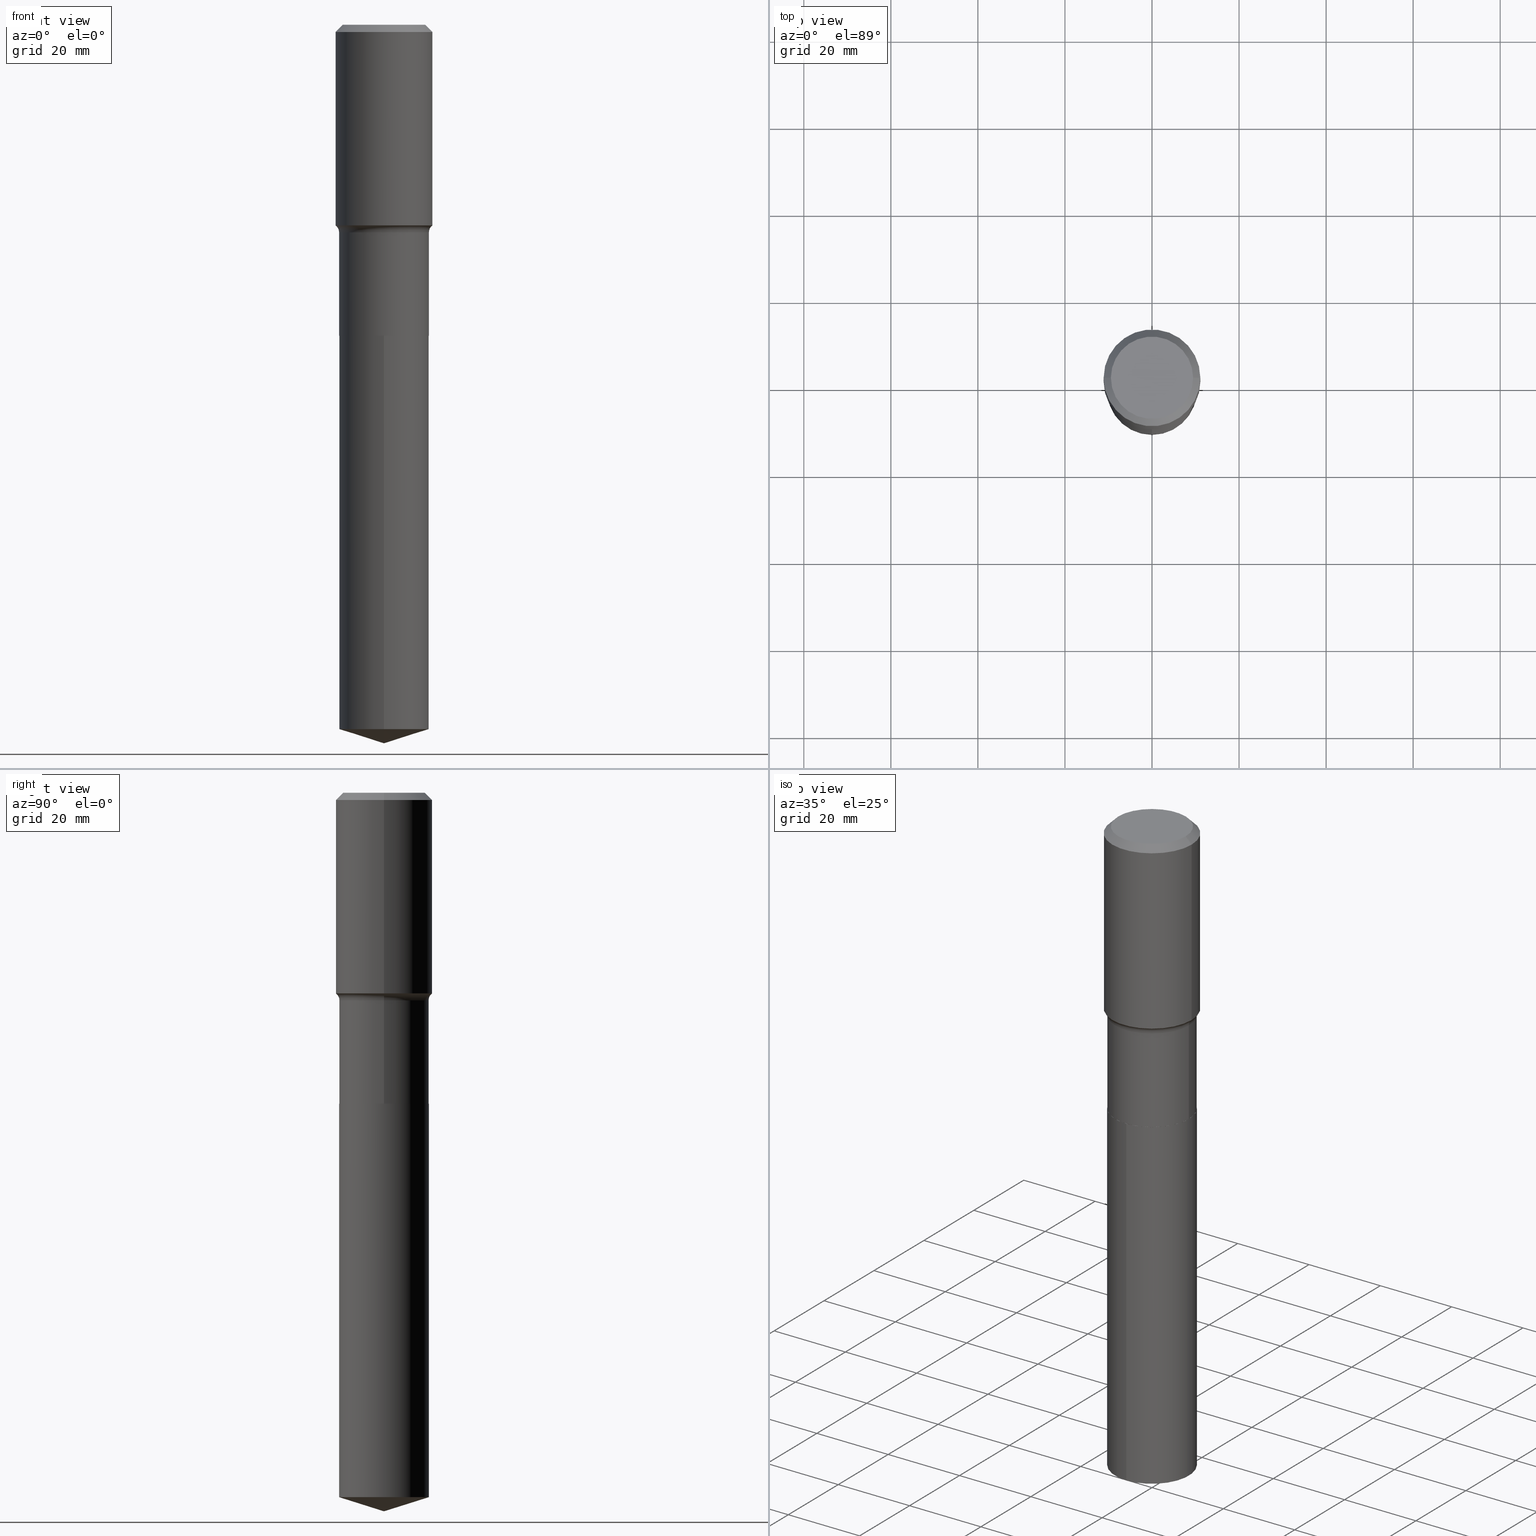
[diagram: canonical four-view strip — front | top / right | iso, engineering-drawing reading convention]
A machine part, canonical four-view strip (front | top / right | iso — engineering-drawing reading convention). The complete STEP part file that produces these views, byte-faithful:
ISO-10303-21;
HEADER;
FILE_DESCRIPTION (( 'STEP AP203' ),
    '1' );
FILE_NAME ('52358.STEP',
    '2024-04-19T13:55:57',
    ( '' ),
    ( '' ),
    'SwSTEP 2.0',
    'SolidWorks 2023',
    '' );
FILE_SCHEMA (( 'CONFIG_CONTROL_DESIGN' ));
ENDSEC;

DATA;
#1 = COORDINATED_UNIVERSAL_TIME_OFFSET ( 5, 0, .BEHIND. ) ;
#2 = DIRECTION ( 'NONE',  ( -1.000000000000000000, 6.982962677686266711E-15, 0.000000000000000000 ) ) ;
#3 = EDGE_CURVE ( 'NONE', #190, #418, #337, .T. ) ;
#4 = DIRECTION ( 'NONE',  ( 7.105427357601001859E-15, 1.000000000000000000, -3.491481338843145583E-15 ) ) ;
#5 = AXIS2_PLACEMENT_3D ( 'NONE', #387, #396, #316 ) ;
#6 = CARTESIAN_POINT ( 'NONE',  ( 0.4375000000000001665, -9.394398017093069781E-15, -1.815662531281288850 ) ) ;
#7 = DIRECTION ( 'NONE',  ( -2.445468806185136597E-29, 3.491481338843145583E-15, 1.000000000000000000 ) ) ;
#8 = ORIENTED_EDGE ( 'NONE', *, *, #257, .T. ) ;
#9 = DATE_TIME_ROLE ( 'classification_date' ) ;
#10 = LINE ( 'NONE', #315, #299 ) ;
#11 = VERTEX_POINT ( 'NONE', #489 ) ;
#12 = AXIS2_PLACEMENT_3D ( 'NONE', #255, #250, #328 ) ;
#13 = CARTESIAN_POINT ( 'NONE',  ( -0.4375000000000000000, 2.825917708626158890E-15, -0.06562500000000040523 ) ) ;
#14 = VERTEX_POINT ( 'NONE', #110 ) ;
#15 = DIRECTION ( 'NONE',  ( 6.982962677686265922E-15, 1.000000000000000000, -3.491608917464549921E-15 ) ) ;
#16 = EDGE_CURVE ( 'NONE', #418, #317, #36, .T. ) ;
#17 = CARTESIAN_POINT ( 'NONE',  ( -2.386509575646494077E-46, 3.407303183449149865E-32, 9.758904180705468520E-18 ) ) ;
#18 = ADVANCED_FACE ( 'NONE', ( #412 ), #106, .T. ) ;
#19 = AXIS2_PLACEMENT_3D ( 'NONE', #277, #126, #268 ) ;
#20 = FACE_OUTER_BOUND ( 'NONE', #225, .T. ) ;
#21 = CC_DESIGN_PERSON_AND_ORGANIZATION_ASSIGNMENT ( #231, #311, ( #141 ) ) ;
#22 = DIRECTION ( 'NONE',  ( 2.445379718509962477E-29, -3.491608917464549921E-15, -1.000000000000000000 ) ) ;
#23 = VERTEX_POINT ( 'NONE', #227 ) ;
#24 = CARTESIAN_POINT ( 'NONE',  ( 4.592834964896304470E-29, -6.557351102481311240E-15, -1.878099999999999881 ) ) ;
#25 = ORIENTED_EDGE ( 'NONE', *, *, #64, .T. ) ;
#26 = PRODUCT ( '52358', '52358', '', ( #483 ) ) ;
#27 = APPROVAL ( #421, 'UNSPECIFIED' ) ;
#28 = CARTESIAN_POINT ( 'NONE',  ( 6.876658282992603877E-29, -9.818045524826925768E-15, -2.811999999999999833 ) ) ;
#29 = AXIS2_PLACEMENT_3D ( 'NONE', #50, #165, #134 ) ;
#30 = CC_DESIGN_SECURITY_CLASSIFICATION ( #415, ( #141 ) ) ;
#31 = VERTEX_POINT ( 'NONE', #35 ) ;
#32 = EDGE_LOOP ( 'NONE', ( #244, #209, #258, #51 ) ) ;
#33 = ADVANCED_FACE ( 'NONE', ( #158 ), #487, .T. ) ;
#34 = DIRECTION ( 'NONE',  ( 0.7071067811864026886, -2.468850131080739687E-15, 0.7071067811866923458 ) ) ;
#35 = CARTESIAN_POINT ( 'NONE',  ( 2.886579864025563200E-15, 0.4062499999999901745, -2.812500000000001776 ) ) ;
#36 = CIRCLE ( 'NONE', #152, 0.4375000000000000000 ) ;
#37 = ORIENTED_EDGE ( 'NONE', *, *, #248, .F. ) ;
#38 = CIRCLE ( 'NONE', #469, 0.4062500000000000000 ) ;
#39 = CC_DESIGN_APPROVAL ( #27, ( #313 ) ) ;
#40 = MANIFOLD_SOLID_BREP ( 'Body-Move/Copy2[1]', #192 ) ;
#41 = EDGE_LOOP ( 'NONE', ( #37, #135 ) ) ;
#42 = ADVANCED_FACE ( 'NONE', ( #306 ), #449, .T. ) ;
#43 = DATE_TIME_ROLE ( 'creation_date' ) ;
#44 = EDGE_CURVE ( 'NONE', #492, #31, #400, .T. ) ;
#45 = DIRECTION ( 'NONE',  ( -2.445468806185136877E-29, 3.491481338843145188E-15, 1.000000000000000000 ) ) ;
#46 = SHAPE_DEFINITION_REPRESENTATION ( #448, #103 ) ;
#47 = CYLINDRICAL_SURFACE ( 'NONE', #19, 0.4062500000000000000 ) ;
#48 = AXIS2_PLACEMENT_3D ( 'NONE', #93, #308, #394 ) ;
#49 = COORDINATED_UNIVERSAL_TIME_OFFSET ( 5, 0, .BEHIND. ) ;
#50 = CARTESIAN_POINT ( 'NONE',  ( 1.604838904059005561E-30, -2.291284628615828451E-16, -0.06562500000000040523 ) ) ;
#51 = ORIENTED_EDGE ( 'NONE', *, *, #262, .F. ) ;
#52 = DIRECTION ( 'NONE',  ( 1.000000000000000000, -6.982962677686265133E-15, 0.000000000000000000 ) ) ;
#53 = ORIENTED_EDGE ( 'NONE', *, *, #64, .F. ) ;
#54 = DIRECTION ( 'NONE',  ( -6.982962677686266711E-15, -1.000000000000000000, 4.034729344488758288E-15 ) ) ;
#55 = ORIENTED_EDGE ( 'NONE', *, *, #380, .T. ) ;
#56 = VECTOR ( 'NONE', #45, 39.37007874015748143 ) ;
#57 = DIRECTION ( 'NONE',  ( -2.445379718509963318E-29, 3.491608917464549527E-15, 1.000000000000000000 ) ) ;
#58 = DIRECTION ( 'NONE',  ( 1.000000000000000000, -6.982962677686267499E-15, 0.000000000000000000 ) ) ;
#59 = MANIFOLD_SOLID_BREP ( 'Body-Move/Copy2[2]', #436 ) ;
#60 = PLANE ( 'NONE',  #73 ) ;
#61 = CIRCLE ( 'NONE', #347, 0.4062499999999998890 ) ;
#62 = DIRECTION ( 'NONE',  ( 1.000000000000000000, -6.982962677686265922E-15, 4.876176775795935793E-29 ) ) ;
#63 = VERTEX_POINT ( 'NONE', #267 ) ;
#64 = EDGE_CURVE ( 'NONE', #204, #63, #117, .T. ) ;
#65 = DIRECTION ( 'NONE',  ( -2.438088387897960049E-29, 3.491481338843145188E-15, 1.000000000000000000 ) ) ;
#66 = ORIENTED_EDGE ( 'NONE', *, *, #344, .T. ) ;
#67 = CARTESIAN_POINT ( 'NONE',  ( 0.4375000000000000000, -3.284174634349324087E-15, -0.06562500000000040523 ) ) ;
#68 = DIRECTION ( 'NONE',  ( -2.445468806185136597E-29, 3.491481338843145583E-15, 1.000000000000000000 ) ) ;
#69 = AXIS2_PLACEMENT_3D ( 'NONE', #238, #4, #240 ) ;
#70 = AXIS2_PLACEMENT_3D ( 'NONE', #465, #425, #200 ) ;
#71 = DIRECTION ( 'NONE',  ( 0.000000000000000000, 0.000000000000000000, 1.000000000000000000 ) ) ;
#72 = ADVANCED_FACE ( 'NONE', ( #196 ), #223, .F. ) ;
#73 = AXIS2_PLACEMENT_3D ( 'NONE', #330, #65, #62 ) ;
#74 = VECTOR ( 'NONE', #157, 39.37007874015748143 ) ;
#75 = EDGE_LOOP ( 'NONE', ( #358, #25, #252 ) ) ;
#76 = EDGE_CURVE ( 'NONE', #353, #296, #285, .T. ) ;
#77 = DIRECTION ( 'NONE',  ( 1.000000000000000000, 0.000000000000000000, 0.000000000000000000 ) ) ;
#78 = ORIENTED_EDGE ( 'NONE', *, *, #478, .F. ) ;
#79 = DIRECTION ( 'NONE',  ( 6.776566513254253404E-15, 0.9537169507482281539, 0.3007057995042689003 ) ) ;
#80 = DIMENSIONAL_EXPONENTS ( 1.000000000000000000, 0.000000000000000000, 0.000000000000000000, 0.000000000000000000, 0.000000000000000000, 0.000000000000000000, 0.000000000000000000 ) ;
#81 = APPROVAL_DATE_TIME ( #162, #361 ) ;
#82 = ORIENTED_EDGE ( 'NONE', *, *, #450, .F. ) ;
#83 = CIRCLE ( 'NONE', #371, 0.4062500000000000000 ) ;
#84 = EDGE_CURVE ( 'NONE', #317, #418, #113, .T. ) ;
#85 = FACE_OUTER_BOUND ( 'NONE', #265, .T. ) ;
#86 = CARTESIAN_POINT ( 'NONE',  ( 6.877881017395696678E-29, -9.819791265496348060E-15, -2.812500000000000000 ) ) ;
#87 = ADVANCED_FACE ( 'NONE', ( #85 ), #391, .T. ) ;
#88 = DIRECTION ( 'NONE',  ( -6.982962677686266711E-15, -1.000000000000000000, 3.500519750498725731E-15 ) ) ;
#89 = AXIS2_PLACEMENT_3D ( 'NONE', #346, #471, #88 ) ;
#90 = CC_DESIGN_APPROVAL ( #416, ( #415 ) ) ;
#91 = ORIENTED_EDGE ( 'NONE', *, *, #300, .T. ) ;
#92 = CALENDAR_DATE ( 2024, 19, 4 ) ;
#93 = CARTESIAN_POINT ( 'NONE',  ( 6.877881017395696678E-29, -9.819791265496348060E-15, -2.812500000000000000 ) ) ;
#94 = ORIENTED_EDGE ( 'NONE', *, *, #450, .T. ) ;
#95 = FACE_OUTER_BOUND ( 'NONE', #374, .T. ) ;
#96 = APPLICATION_CONTEXT ( 'configuration controlled 3d designs of mechanical parts and assemblies' ) ;
#97 = EDGE_LOOP ( 'NONE', ( #378, #143, #443, #78 ) ) ;
#98 = CARTESIAN_POINT ( 'NONE',  ( 6.876658282992603877E-29, -9.818045524826925768E-15, -2.811999999999999833 ) ) ;
#99 = EDGE_CURVE ( 'NONE', #190, #398, #310, .T. ) ;
#100 = AXIS2_PLACEMENT_3D ( 'NONE', #249, #405, #323 ) ;
#101 = ADVANCED_FACE ( 'NONE', ( #128 ), #467, .T. ) ;
#102 = CARTESIAN_POINT ( 'NONE',  ( -4.773019151292988154E-46, 6.814606366898299729E-32, 1.951780836141093704E-17 ) ) ;
#103 = ADVANCED_BREP_SHAPE_REPRESENTATION ( '52358', ( #40, #59, #124 ), #439 ) ;
#104 = CARTESIAN_POINT ( 'NONE',  ( -2.836828587809890051E-15, -0.4062500000000223155, -6.371909867017912177 ) ) ;
#105 = DIRECTION ( 'NONE',  ( -2.445468806185136597E-29, 3.491481338843145583E-15, 1.000000000000000000 ) ) ;
#106 = CONICAL_SURFACE ( 'NONE', #309, 0.4057500000000000551, 0.7853981633972434429 ) ;
#107 = CIRCLE ( 'NONE', #381, 0.4062500000000000000 ) ;
#108 = CARTESIAN_POINT ( 'NONE',  ( -0.4375000000000000000, -1.756156852830166883E-16, -0.06562500000000040523 ) ) ;
#109 = EDGE_LOOP ( 'NONE', ( #279, #195, #175, #183 ) ) ;
#110 = CARTESIAN_POINT ( 'NONE',  ( 0.4062500000000000000, -1.265487411263697241E-14, -2.811999999999999833 ) ) ;
#111 = DIRECTION ( 'NONE',  ( -2.445468806185136597E-29, 3.491481338843145583E-15, 1.000000000000000000 ) ) ;
#112 = CARTESIAN_POINT ( 'NONE',  ( 1.604838904059005561E-30, -2.291284628615828451E-16, -0.06562500000000040523 ) ) ;
#113 = CIRCLE ( 'NONE', #484, 0.4375000000000000000 ) ;
#114 = VECTOR ( 'NONE', #479, 39.37007874015748143 ) ;
#115 = VERTEX_POINT ( 'NONE', #206 ) ;
#116 = DIRECTION ( 'NONE',  ( 1.000000000000000000, -6.982962677686267499E-15, 0.000000000000000000 ) ) ;
#117 = LINE ( 'NONE', #420, #370 ) ;
#118 = ORIENTED_EDGE ( 'NONE', *, *, #84, .F. ) ;
#119 = APPLICATION_CONTEXT ( 'configuration controlled 3d designs of mechanical parts and assemblies' ) ;
#120 = PERSON_AND_ORGANIZATION_ROLE ( 'creator' ) ;
#121 = AXIS2_PLACEMENT_3D ( 'NONE', #457, #68, #294 ) ;
#122 = DIRECTION ( 'NONE',  ( 1.000000000000000000, -6.982962677686255667E-15, 0.000000000000000000 ) ) ;
#123 = CONICAL_SURFACE ( 'NONE', #89, 124.8659371009143086, 1.265363707695889905 ) ;
#124 = AXIS2_PLACEMENT_3D ( 'NONE', #342, #71, #77 ) ;
#125 = PERSON_AND_ORGANIZATION_ROLE ( 'classification_officer' ) ;
#126 = DIRECTION ( 'NONE',  ( -2.445379718509963318E-29, 3.491608917464549527E-15, 1.000000000000000000 ) ) ;
#127 = DESIGN_CONTEXT ( 'detailed design', #119, 'design' ) ;
#128 = FACE_OUTER_BOUND ( 'NONE', #220, .T. ) ;
#129 = CC_DESIGN_PERSON_AND_ORGANIZATION_ASSIGNMENT ( #224, #266, ( #26 ) ) ;
#130 = DATE_AND_TIME ( #427, #326 ) ;
#131 = DIRECTION ( 'NONE',  ( -2.445468806185136877E-29, 3.491481338843145188E-15, 1.000000000000000000 ) ) ;
#132 = ORIENTED_EDGE ( 'NONE', *, *, #16, .T. ) ;
#133 = ADVANCED_FACE ( 'NONE', ( #95 ), #348, .T. ) ;
#134 = DIRECTION ( 'NONE',  ( -1.000000000000000000, 6.982962677686266711E-15, 0.000000000000000000 ) ) ;
#135 = ORIENTED_EDGE ( 'NONE', *, *, #241, .F. ) ;
#136 = CARTESIAN_POINT ( 'NONE',  ( -0.4057500000000000551, -6.936764115149741165E-15, -2.812500000000000000 ) ) ;
#137 = EDGE_CURVE ( 'NONE', #353, #317, #354, .T. ) ;
#138 = DIRECTION ( 'NONE',  ( -2.445468806185136597E-29, 3.491481338843145583E-15, 1.000000000000000000 ) ) ;
#139 = AXIS2_PLACEMENT_3D ( 'NONE', #312, #234, #203 ) ;
#140 = CC_DESIGN_APPROVAL ( #361, ( #141 ) ) ;
#141 = PRODUCT_DEFINITION_FORMATION_WITH_SPECIFIED_SOURCE ( 'ANY', '', #26, .NOT_KNOWN. ) ;
#142 = LINE ( 'NONE', #438, #462 ) ;
#143 = ORIENTED_EDGE ( 'NONE', *, *, #440, .T. ) ;
#144 = PRODUCT_RELATED_PRODUCT_CATEGORY ( 'detail', '', ( #26 ) ) ;
#145 = DIRECTION ( 'NONE',  ( 1.000000000000000000, -6.982962677686266711E-15, 4.883557194083112901E-29 ) ) ;
#146 = VERTEX_POINT ( 'NONE', #243 ) ;
#147 = CIRCLE ( 'NONE', #276, 0.3718749999999999556 ) ;
#148 = CARTESIAN_POINT ( 'NONE',  ( 0.3718749999999999556, -2.890922014903957840E-15, 1.951780836143012547E-17 ) ) ;
#149 = ORIENTED_EDGE ( 'NONE', *, *, #478, .T. ) ;
#150 = CARTESIAN_POINT ( 'NONE',  ( 0.000000000000000000, 0.000000000000000000, 0.000000000000000000 ) ) ;
#151 = ORIENTED_EDGE ( 'NONE', *, *, #3, .F. ) ;
#152 = AXIS2_PLACEMENT_3D ( 'NONE', #112, #422, #303 ) ;
#153 = AXIS2_PLACEMENT_3D ( 'NONE', #441, #105, #145 ) ;
#154 = APPLICATION_PROTOCOL_DEFINITION ( 'international standard', 'config_control_design', 1994, #96 ) ;
#155 = CARTESIAN_POINT ( 'NONE',  ( 6.877881017395696678E-29, -9.819791265496348060E-15, -2.812500000000000000 ) ) ;
#156 = ADVANCED_FACE ( 'NONE', ( #161 ), #47, .T. ) ;
#157 = DIRECTION ( 'NONE',  ( -2.445379718509963318E-29, 3.491608917464549921E-15, 1.000000000000000000 ) ) ;
#158 = FACE_OUTER_BOUND ( 'NONE', #275, .T. ) ;
#159 = CC_DESIGN_PERSON_AND_ORGANIZATION_ASSIGNMENT ( #302, #456, ( #313 ) ) ;
#160 = COORDINATED_UNIVERSAL_TIME_OFFSET ( 5, 0, .BEHIND. ) ;
#161 = FACE_OUTER_BOUND ( 'NONE', #32, .T. ) ;
#162 = DATE_AND_TIME ( #92, #208 ) ;
#163 = DIRECTION ( 'NONE',  ( -2.445468806185136597E-29, 3.491481338843145583E-15, 1.000000000000000000 ) ) ;
#164 = TOROIDAL_SURFACE ( 'NONE', #153, 0.4842499999999999583, 0.07799999999999999989 ) ;
#165 = DIRECTION ( 'NONE',  ( 2.445468806185136597E-29, -3.491481338843145583E-15, -1.000000000000000000 ) ) ;
#166 = PERSON_AND_ORGANIZATION ( #477, #372 ) ;
#167 = CARTESIAN_POINT ( 'NONE',  ( 1.604838904059005561E-30, -2.291284628615828451E-16, -0.06562500000000040523 ) ) ;
#168 = ORIENTED_EDGE ( 'NONE', *, *, #344, .F. ) ;
#169 = PERSON_AND_ORGANIZATION ( #477, #372 ) ;
#170 = CARTESIAN_POINT ( 'NONE',  ( 0.4062499999999999445, -2.836828587810045457E-15, 1.980946815167098706E-29 ) ) ;
#171 = VECTOR ( 'NONE', #473, 39.37007874015748854 ) ;
#172 = EDGE_LOOP ( 'NONE', ( #376, #256, #232, #432 ) ) ;
#173 = EDGE_CURVE ( 'NONE', #340, #63, #437, .T. ) ;
#174 = CARTESIAN_POINT ( 'NONE',  ( 6.877881017395696678E-29, -9.819791265496348060E-15, -2.812500000000000000 ) ) ;
#175 = ORIENTED_EDGE ( 'NONE', *, *, #413, .T. ) ;
#176 = CARTESIAN_POINT ( 'NONE',  ( 0.4062499999999998890, -9.394179690291356303E-15, -1.878099999999999881 ) ) ;
#177 = FACE_OUTER_BOUND ( 'NONE', #414, .T. ) ;
#178 = ADVANCED_FACE ( 'NONE', ( #428 ), #123, .T. ) ;
#179 = DIRECTION ( 'NONE',  ( -0.7071067811865453523, 2.468850131082234184E-15, -0.7071067811865496822 ) ) ;
#180 = DIRECTION ( 'NONE',  ( -2.445468806185136597E-29, 3.491481338843145583E-15, 1.000000000000000000 ) ) ;
#181 = ORIENTED_EDGE ( 'NONE', *, *, #205, .F. ) ;
#182 = CARTESIAN_POINT ( 'NONE',  ( 2.886579864025475636E-15, 0.4062499999999901745, -2.812500000000001776 ) ) ;
#183 = ORIENTED_EDGE ( 'NONE', *, *, #440, .F. ) ;
#184 = CIRCLE ( 'NONE', #12, 0.4375000000000002776 ) ;
#185 = EDGE_CURVE ( 'NONE', #115, #296, #10, .T. ) ;
#186 = CARTESIAN_POINT ( 'NONE',  ( 0.000000000000000000, 0.000000000000000000, 0.000000000000000000 ) ) ;
#187 = CARTESIAN_POINT ( 'NONE',  ( 0.4375000000000001110, -3.055046171487742475E-15, 2.133327339410722330E-29 ) ) ;
#188 =( CONVERSION_BASED_UNIT ( 'INCH', #332 ) LENGTH_UNIT ( ) NAMED_UNIT ( #80 ) );
#189 = CC_DESIGN_DATE_AND_TIME_ASSIGNMENT ( #130, #9, ( #415 ) ) ;
#190 = VERTEX_POINT ( 'NONE', #6 ) ;
#191 = DIRECTION ( 'NONE',  ( 1.000000000000000000, -6.982962677686266711E-15, 4.876176775795935793E-29 ) ) ;
#192 = CLOSED_SHELL ( 'NONE', ( #156, #178, #399, #101, #351 ) ) ;
#193 = VECTOR ( 'NONE', #34, 39.37007874015748143 ) ;
#194 = CARTESIAN_POINT ( 'NONE',  ( 6.877881017395696678E-29, -9.819791265496348060E-15, -2.812500000000000000 ) ) ;
#195 = ORIENTED_EDGE ( 'NONE', *, *, #241, .T. ) ;
#196 = FACE_OUTER_BOUND ( 'NONE', #222, .T. ) ;
#197 = APPROVAL_STATUS ( 'not_yet_approved' ) ;
#198 = FACE_OUTER_BOUND ( 'NONE', #366, .T. ) ;
#199 = VECTOR ( 'NONE', #284, 39.37007874015748143 ) ;
#200 = DIRECTION ( 'NONE',  ( -6.982962677686266711E-15, -1.000000000000000000, 2.689819562992505262E-15 ) ) ;
#201 = DIRECTION ( 'NONE',  ( -2.445468806185136597E-29, 3.491481338843145583E-15, 1.000000000000000000 ) ) ;
#202 = ORIENTED_EDGE ( 'NONE', *, *, #470, .F. ) ;
#203 = DIRECTION ( 'NONE',  ( 1.000000000000000000, -6.982962677686266711E-15, 4.876176775795935793E-29 ) ) ;
#204 = VERTEX_POINT ( 'NONE', #424 ) ;
#205 = EDGE_CURVE ( 'NONE', #14, #398, #386, .T. ) ;
#206 = CARTESIAN_POINT ( 'NONE',  ( -0.4062500000000000000, -5.301118449628711499E-15, -2.811999999999999833 ) ) ;
#207 = AXIS2_PLACEMENT_3D ( 'NONE', #167, #281, #2 ) ;
#208 = LOCAL_TIME ( 9, 55, 57.00000000000000000, #1 ) ;
#209 = ORIENTED_EDGE ( 'NONE', *, *, #470, .T. ) ;
#210 = DIRECTION ( 'NONE',  ( -6.982962677686266711E-15, -1.000000000000000000, 3.500519750498725731E-15 ) ) ;
#211 = FACE_OUTER_BOUND ( 'NONE', #321, .T. ) ;
#212 = ADVANCED_FACE ( 'NONE', ( #198 ), #475, .T. ) ;
#213 = CARTESIAN_POINT ( 'NONE',  ( 4.592834964896304470E-29, -6.557351102481311240E-15, -1.878099999999999881 ) ) ;
#214 = EDGE_CURVE ( 'NONE', #353, #190, #260, .T. ) ;
#215 = VECTOR ( 'NONE', #131, 39.37007874015748143 ) ;
#216 = FACE_OUTER_BOUND ( 'NONE', #217, .T. ) ;
#217 = EDGE_LOOP ( 'NONE', ( #282, #91 ) ) ;
#218 = EDGE_CURVE ( 'NONE', #23, #446, #423, .T. ) ;
#219 = COORDINATED_UNIVERSAL_TIME_OFFSET ( 5, 0, .BEHIND. ) ;
#220 = EDGE_LOOP ( 'NONE', ( #202, #94, #485, #409 ) ) ;
#221 = FACE_OUTER_BOUND ( 'NONE', #109, .T. ) ;
#222 = EDGE_LOOP ( 'NONE', ( #259, #468, #407, #355 ) ) ;
#223 = TOROIDAL_SURFACE ( 'NONE', #5, 0.4842499999999999583, 0.07799999999999999989 ) ;
#224 = PERSON_AND_ORGANIZATION ( #477, #372 ) ;
#225 = EDGE_LOOP ( 'NONE', ( #369, #367 ) ) ;
#226 = DATE_AND_TIME ( #417, #349 ) ;
#227 = CARTESIAN_POINT ( 'NONE',  ( -0.3718749999999999556, 2.711353477195369464E-15, 1.951780836139237724E-17 ) ) ;
#228 = CARTESIAN_POINT ( 'NONE',  ( -2.836828587809976826E-15, -0.4062500000000098255, -2.812499999999998668 ) ) ;
#229 = DIRECTION ( 'NONE',  ( -2.445468806185136877E-29, 3.491481338843145188E-15, 1.000000000000000000 ) ) ;
#230 = AXIS2_PLACEMENT_3D ( 'NONE', #194, #297, #339 ) ;
#231 = PERSON_AND_ORGANIZATION ( #477, #372 ) ;
#232 = ORIENTED_EDGE ( 'NONE', *, *, #380, .F. ) ;
#233 = DATE_AND_TIME ( #464, #301 ) ;
#234 = DIRECTION ( 'NONE',  ( -2.445468806185136597E-29, 3.491481338843145583E-15, 1.000000000000000000 ) ) ;
#235 = CARTESIAN_POINT ( 'NONE',  ( -0.4375000000000001110, 3.108624468950439102E-15, -2.152034101986521805E-29 ) ) ;
#236 = PERSON_AND_ORGANIZATION ( #477, #372 ) ;
#237 = CONICAL_SURFACE ( 'NONE', #341, 124.8659371009143086, 1.265363707695889905 ) ;
#238 = CARTESIAN_POINT ( 'NONE',  ( -0.4842499999999999583, -3.116547904563026387E-15, -1.878099999999999881 ) ) ;
#239 = ORIENTED_EDGE ( 'NONE', *, *, #16, .F. ) ;
#240 = DIRECTION ( 'NONE',  ( -1.000000000000000000, 7.105427357601001859E-15, 0.000000000000000000 ) ) ;
#241 = EDGE_CURVE ( 'NONE', #11, #146, #286, .T. ) ;
#242 = ORIENTED_EDGE ( 'NONE', *, *, #307, .F. ) ;
#243 = CARTESIAN_POINT ( 'NONE',  ( 0.4057500000000000551, -1.265312837196755169E-14, -2.812500000000000000 ) ) ;
#244 = ORIENTED_EDGE ( 'NONE', *, *, #173, .T. ) ;
#245 = DIRECTION ( 'NONE',  ( -2.445379718509963318E-29, 3.491608917464549527E-15, 1.000000000000000000 ) ) ;
#246 = AXIS2_PLACEMENT_3D ( 'NONE', #155, #384, #452 ) ;
#247 = AXIS2_PLACEMENT_3D ( 'NONE', #474, #22, #15 ) ;
#248 = EDGE_CURVE ( 'NONE', #146, #11, #254, .T. ) ;
#249 = CARTESIAN_POINT ( 'NONE',  ( 6.877881017395696678E-29, -9.819791265496348060E-15, -2.812500000000000000 ) ) ;
#250 = DIRECTION ( 'NONE',  ( -2.445468806185136597E-29, 3.491481338843145583E-15, 1.000000000000000000 ) ) ;
#251 = CYLINDRICAL_SURFACE ( 'NONE', #406, 0.4062499999999999445 ) ;
#252 = ORIENTED_EDGE ( 'NONE', *, *, #173, .F. ) ;
#253 = VECTOR ( 'NONE', #229, 39.37007874015748143 ) ;
#254 = CIRCLE ( 'NONE', #100, 0.4057500000000000551 ) ;
#255 = CARTESIAN_POINT ( 'NONE',  ( 4.440146082807536535E-29, -6.339351845605328884E-15, -1.815662531281288850 ) ) ;
#256 = ORIENTED_EDGE ( 'NONE', *, *, #359, .T. ) ;
#257 = EDGE_CURVE ( 'NONE', #190, #353, #184, .T. ) ;
#258 = ORIENTED_EDGE ( 'NONE', *, *, #44, .F. ) ;
#259 = ORIENTED_EDGE ( 'NONE', *, *, #76, .F. ) ;
#260 = CIRCLE ( 'NONE', #401, 0.4375000000000002776 ) ;
#261 = APPLICATION_PROTOCOL_DEFINITION ( 'international standard', 'config_control_design', 1994, #119 ) ;
#262 = EDGE_CURVE ( 'NONE', #340, #492, #142, .T. ) ;
#263 = ORIENTED_EDGE ( 'NONE', *, *, #76, .T. ) ;
#264 = DIRECTION ( 'NONE',  ( 1.000000000000000000, -6.982962677686267499E-15, 0.000000000000000000 ) ) ;
#265 = EDGE_LOOP ( 'NONE', ( #336, #480, #333, #118 ) ) ;
#266 = PERSON_AND_ORGANIZATION_ROLE ( 'design_owner' ) ;
#267 = CARTESIAN_POINT ( 'NONE',  ( 2.886579864025562411E-15, 0.4062499999999776845, -6.371909867017914841 ) ) ;
#268 = DIRECTION ( 'NONE',  ( -6.982962677686266711E-15, -1.000000000000000000, 4.034729344488758288E-15 ) ) ;
#269 = ADVANCED_FACE ( 'NONE', ( #403 ), #60, .F. ) ;
#270 = CALENDAR_DATE ( 2024, 19, 4 ) ;
#271 = DIRECTION ( 'NONE',  ( 1.000000000000000000, -6.982962677686266711E-15, 0.000000000000000000 ) ) ;
#272 = CC_DESIGN_PERSON_AND_ORGANIZATION_ASSIGNMENT ( #166, #120, ( #141 ) ) ;
#273 = SECURITY_CLASSIFICATION_LEVEL ( 'unclassified' ) ;
#274 = CARTESIAN_POINT ( 'NONE',  ( 1.604838904059005561E-30, -2.291284628615828451E-16, -0.06562500000000040523 ) ) ;
#275 = EDGE_LOOP ( 'NONE', ( #8, #392, #239, #151 ) ) ;
#276 = AXIS2_PLACEMENT_3D ( 'NONE', #102, #180, #356 ) ;
#277 = CARTESIAN_POINT ( 'NONE',  ( 6.877881017395696678E-29, -9.819791265496348060E-15, -2.812500000000000000 ) ) ;
#278 = APPROVAL_PERSON_ORGANIZATION ( #169, #416, #345 ) ;
#279 = ORIENTED_EDGE ( 'NONE', *, *, #359, .F. ) ;
#280 = COORDINATED_UNIVERSAL_TIME_OFFSET ( 5, 0, .BEHIND. ) ;
#281 = DIRECTION ( 'NONE',  ( 2.445468806185136597E-29, -3.491481338843145583E-15, -1.000000000000000000 ) ) ;
#282 = ORIENTED_EDGE ( 'NONE', *, *, #44, .T. ) ;
#283 = LINE ( 'NONE', #136, #114 ) ;
#284 = DIRECTION ( 'NONE',  ( 0.7071067811865453523, -7.319954787623248157E-15, -0.7071067811865496822 ) ) ;
#285 = CIRCLE ( 'NONE', #69, 0.07800000000000002764 ) ;
#286 = CIRCLE ( 'NONE', #48, 0.4057500000000000551 ) ;
#287 = CARTESIAN_POINT ( 'NONE',  ( 0.4375000000000000000, -3.230596336886627460E-15, -0.06562500000000040523 ) ) ;
#288 = CARTESIAN_POINT ( 'NONE',  ( -0.4062499999999998890, -5.301118449628712288E-15, -1.878099999999999881 ) ) ;
#289 = ORIENTED_EDGE ( 'NONE', *, *, #304, .T. ) ;
#290 = LINE ( 'NONE', #287, #199 ) ;
#291 = EDGE_LOOP ( 'NONE', ( #55, #395, #242, #181 ) ) ;
#292 = CIRCLE ( 'NONE', #463, 0.4062499999999998890 ) ;
#293 = DIRECTION ( 'NONE',  ( -6.982962677686266711E-15, -1.000000000000000000, 2.689819562992505262E-15 ) ) ;
#294 = DIRECTION ( 'NONE',  ( 1.000000000000000000, -6.982962677686266711E-15, 4.876176775795935793E-29 ) ) ;
#295 = CARTESIAN_POINT ( 'NONE',  ( 0.4057500000000000551, -1.265312837196755169E-14, -2.812500000000000000 ) ) ;
#296 = VERTEX_POINT ( 'NONE', #288 ) ;
#297 = DIRECTION ( 'NONE',  ( -2.445468806185136597E-29, 3.491481338843145583E-15, 1.000000000000000000 ) ) ;
#298 = CARTESIAN_POINT ( 'NONE',  ( 6.877881017395696678E-29, -9.819791265496348060E-15, -2.812500000000000000 ) ) ;
#299 = VECTOR ( 'NONE', #350, 39.37007874015748143 ) ;
#300 = EDGE_CURVE ( 'NONE', #31, #492, #319, .T. ) ;
#301 = LOCAL_TIME ( 9, 55, 57.00000000000000000, #280 ) ;
#302 = PERSON_AND_ORGANIZATION ( #477, #372 ) ;
#303 = DIRECTION ( 'NONE',  ( 1.000000000000000000, -6.982962677686266711E-15, 0.000000000000000000 ) ) ;
#304 = EDGE_CURVE ( 'NONE', #204, #340, #476, .T. ) ;
#305 =( NAMED_UNIT ( * ) SI_UNIT ( $, .STERADIAN. ) SOLID_ANGLE_UNIT ( ) );
#306 = FACE_OUTER_BOUND ( 'NONE', #97, .T. ) ;
#307 = EDGE_CURVE ( 'NONE', #398, #296, #61, .T. ) ;
#308 = DIRECTION ( 'NONE',  ( -2.445468806185136597E-29, 3.491481338843145583E-15, 1.000000000000000000 ) ) ;
#309 = AXIS2_PLACEMENT_3D ( 'NONE', #298, #343, #454 ) ;
#310 = CIRCLE ( 'NONE', #364, 0.07800000000000002764 ) ;
#311 = PERSON_AND_ORGANIZATION_ROLE ( 'design_supplier' ) ;
#312 = CARTESIAN_POINT ( 'NONE',  ( 0.000000000000000000, 0.000000000000000000, 0.000000000000000000 ) ) ;
#313 = PRODUCT_DEFINITION ( 'UNKNOWN', '', #141, #127 ) ;
#314 = DATE_AND_TIME ( #270, #491 ) ;
#315 = CARTESIAN_POINT ( 'NONE',  ( -0.4062499999999999445, 2.886579864025406611E-15, -1.998317380416055001E-29 ) ) ;
#316 = DIRECTION ( 'NONE',  ( 1.000000000000000000, -6.982962677686266711E-15, 4.883557194083112901E-29 ) ) ;
#317 = VERTEX_POINT ( 'NONE', #108 ) ;
#318 = PERSON_AND_ORGANIZATION ( #477, #372 ) ;
#319 = CIRCLE ( 'NONE', #445, 0.4062500000000000000 ) ;
#320 = DIRECTION ( 'NONE',  ( -2.445379718509963318E-29, 3.491608917464549527E-15, 1.000000000000000000 ) ) ;
#321 = EDGE_LOOP ( 'NONE', ( #490, #263, #149, #482 ) ) ;
#322 = PLANE ( 'NONE',  #247 ) ;
#323 = DIRECTION ( 'NONE',  ( 1.000000000000000000, -6.982962677686268288E-15, 0.000000000000000000 ) ) ;
#324 = DIRECTION ( 'NONE',  ( -2.445379718509963318E-29, 3.491608917464549921E-15, 1.000000000000000000 ) ) ;
#325 = VECTOR ( 'NONE', #179, 39.37007874015748143 ) ;
#326 = LOCAL_TIME ( 9, 55, 57.00000000000000000, #160 ) ;
#327 = EDGE_CURVE ( 'NONE', #23, #317, #444, .T. ) ;
#328 = DIRECTION ( 'NONE',  ( 1.000000000000000000, -6.982962677686265133E-15, 0.000000000000000000 ) ) ;
#329 = ORIENTED_EDGE ( 'NONE', *, *, #327, .F. ) ;
#330 = CARTESIAN_POINT ( 'NONE',  ( 6.877881017395696678E-29, -9.819791265496348060E-15, -2.812500000000000000 ) ) ;
#331 = ORIENTED_EDGE ( 'NONE', *, *, #338, .F. ) ;
#332 = LENGTH_MEASURE_WITH_UNIT ( LENGTH_MEASURE( 0.02539999999999999897 ), #486 );
#333 = ORIENTED_EDGE ( 'NONE', *, *, #3, .T. ) ;
#334 = AXIS2_PLACEMENT_3D ( 'NONE', #352, #7, #431 ) ;
#335 = DIRECTION ( 'NONE',  ( -2.445379718509963318E-29, 3.491608917464549527E-15, 1.000000000000000000 ) ) ;
#336 = ORIENTED_EDGE ( 'NONE', *, *, #137, .F. ) ;
#337 = LINE ( 'NONE', #187, #253 ) ;
#338 = EDGE_CURVE ( 'NONE', #446, #23, #147, .T. ) ;
#339 = DIRECTION ( 'NONE',  ( 1.000000000000000000, -6.982962677686268288E-15, 0.000000000000000000 ) ) ;
#340 = VERTEX_POINT ( 'NONE', #104 ) ;
#341 = AXIS2_PLACEMENT_3D ( 'NONE', #404, #57, #210 ) ;
#342 = CARTESIAN_POINT ( 'NONE',  ( 0.000000000000000000, 0.000000000000000000, 0.000000000000000000 ) ) ;
#343 = DIRECTION ( 'NONE',  ( -2.445468806185136597E-29, 3.491481338843145583E-15, 1.000000000000000000 ) ) ;
#344 = EDGE_CURVE ( 'NONE', #446, #418, #290, .T. ) ;
#345 = APPROVAL_ROLE ( '' ) ;
#346 = CARTESIAN_POINT ( 'NONE',  ( -8.037957333792020031E-28, 1.147698188617684596E-13, 32.87007874015748143 ) ) ;
#347 = AXIS2_PLACEMENT_3D ( 'NONE', #213, #138, #435 ) ;
#348 = CONICAL_SURFACE ( 'NONE', #207, 0.4375000000000000000, 0.7853981633974452814 ) ;
#349 = LOCAL_TIME ( 9, 55, 57.00000000000000000, #219 ) ;
#350 = DIRECTION ( 'NONE',  ( -2.445468806185136877E-29, 3.491481338843145188E-15, 1.000000000000000000 ) ) ;
#351 = ADVANCED_FACE ( 'NONE', ( #216 ), #322, .F. ) ;
#352 = CARTESIAN_POINT ( 'NONE',  ( -4.773019151292988154E-46, 6.814606366898299729E-32, 1.951780836141093704E-17 ) ) ;
#353 = VERTEX_POINT ( 'NONE', #365 ) ;
#354 = LINE ( 'NONE', #235, #215 ) ;
#355 = ORIENTED_EDGE ( 'NONE', *, *, #307, .T. ) ;
#356 = DIRECTION ( 'NONE',  ( 1.000000000000000000, -6.982962677686267499E-15, 4.876184966057910179E-29 ) ) ;
#357 = APPROVAL_PERSON_ORGANIZATION ( #236, #361, #383 ) ;
#358 = ORIENTED_EDGE ( 'NONE', *, *, #304, .F. ) ;
#359 = EDGE_CURVE ( 'NONE', #11, #115, #283, .T. ) ;
#360 = FACE_OUTER_BOUND ( 'NONE', #291, .T. ) ;
#361 = APPROVAL ( #389, 'UNSPECIFIED' ) ;
#362 = PLANE ( 'NONE',  #388 ) ;
#363 = DIRECTION ( 'NONE',  ( -2.445468806185136597E-29, 3.491481338843145583E-15, 1.000000000000000000 ) ) ;
#364 = AXIS2_PLACEMENT_3D ( 'NONE', #433, #460, #122 ) ;
#365 = CARTESIAN_POINT ( 'NONE',  ( -0.4375000000000001665, -3.230727376654889387E-15, -1.815662531281288850 ) ) ;
#366 = EDGE_LOOP ( 'NONE', ( #168, #429, #472, #434 ) ) ;
#367 = ORIENTED_EDGE ( 'NONE', *, *, #338, .T. ) ;
#368 = DIRECTION ( 'NONE',  ( 1.000000000000000000, -6.982962677686266711E-15, 4.876176775795935793E-29 ) ) ;
#369 = ORIENTED_EDGE ( 'NONE', *, *, #218, .T. ) ;
#370 = VECTOR ( 'NONE', #79, 39.37007874015748143 ) ;
#371 = AXIS2_PLACEMENT_3D ( 'NONE', #98, #363, #58 ) ;
#372 = ORGANIZATION ( 'UNSPECIFIED', 'UNSPECIFIED', '' ) ;
#373 = PERSON_AND_ORGANIZATION ( #477, #372 ) ;
#374 = EDGE_LOOP ( 'NONE', ( #331, #66, #132, #329 ) ) ;
#375 = APPROVAL_DATE_TIME ( #226, #27 ) ;
#376 = ORIENTED_EDGE ( 'NONE', *, *, #248, .T. ) ;
#377 = DIRECTION ( 'NONE',  ( -2.445468806185136597E-29, 3.491481338843145583E-15, 1.000000000000000000 ) ) ;
#378 = ORIENTED_EDGE ( 'NONE', *, *, #185, .F. ) ;
#379 = UNCERTAINTY_MEASURE_WITH_UNIT (LENGTH_MEASURE( 1.000000000000000082E-05 ), #188, 'distance_accuracy_value', 'NONE');
#380 = EDGE_CURVE ( 'NONE', #14, #115, #83, .T. ) ;
#381 = AXIS2_PLACEMENT_3D ( 'NONE', #451, #335, #293 ) ;
#382 = APPROVAL_PERSON_ORGANIZATION ( #373, #27, #488 ) ;
#383 = APPROVAL_ROLE ( '' ) ;
#384 = DIRECTION ( 'NONE',  ( -2.445379718509963318E-29, 3.491608917464549527E-15, 1.000000000000000000 ) ) ;
#385 = CC_DESIGN_PERSON_AND_ORGANIZATION_ASSIGNMENT ( #318, #125, ( #415 ) ) ;
#386 = LINE ( 'NONE', #170, #56 ) ;
#387 = CARTESIAN_POINT ( 'NONE',  ( 4.592834964896304470E-29, -6.557351102481311240E-15, -1.878099999999999881 ) ) ;
#388 = AXIS2_PLACEMENT_3D ( 'NONE', #17, #481, #402 ) ;
#389 = APPROVAL_STATUS ( 'not_yet_approved' ) ;
#390 = ADVANCED_FACE ( 'NONE', ( #211 ), #164, .F. ) ;
#391 = CYLINDRICAL_SURFACE ( 'NONE', #139, 0.4375000000000001110 ) ;
#392 = ORIENTED_EDGE ( 'NONE', *, *, #137, .T. ) ;
#393 = APPROVAL_DATE_TIME ( #314, #416 ) ;
#394 = DIRECTION ( 'NONE',  ( 1.000000000000000000, -6.982962677686268288E-15, 0.000000000000000000 ) ) ;
#395 = ORIENTED_EDGE ( 'NONE', *, *, #185, .T. ) ;
#396 = DIRECTION ( 'NONE',  ( -2.445468806185136597E-29, 3.491481338843145583E-15, 1.000000000000000000 ) ) ;
#397 = ADVANCED_FACE ( 'NONE', ( #20 ), #362, .F. ) ;
#398 = VERTEX_POINT ( 'NONE', #176 ) ;
#399 = ADVANCED_FACE ( 'NONE', ( #177 ), #237, .T. ) ;
#400 = CIRCLE ( 'NONE', #246, 0.4062500000000000000 ) ;
#401 = AXIS2_PLACEMENT_3D ( 'NONE', #466, #201, #52 ) ;
#402 = DIRECTION ( 'NONE',  ( -1.000000000000000000, 6.982962677686265922E-15, -4.876176775795935793E-29 ) ) ;
#403 = FACE_OUTER_BOUND ( 'NONE', #41, .T. ) ;
#404 = CARTESIAN_POINT ( 'NONE',  ( -8.037957333792020031E-28, 1.147698188617684596E-13, 32.87007874015748143 ) ) ;
#405 = DIRECTION ( 'NONE',  ( -2.445468806185136597E-29, 3.491481338843145583E-15, 1.000000000000000000 ) ) ;
#406 = AXIS2_PLACEMENT_3D ( 'NONE', #186, #377, #368 ) ;
#407 = ORIENTED_EDGE ( 'NONE', *, *, #99, .T. ) ;
#408 = CARTESIAN_POINT ( 'NONE',  ( 1.589496817031475919E-28, -2.269545796351957015E-14, -6.500000000000000000 ) ) ;
#409 = ORIENTED_EDGE ( 'NONE', *, *, #300, .F. ) ;
#410 = ADVANCED_FACE ( 'NONE', ( #360 ), #251, .T. ) ;
#411 = DIRECTION ( 'NONE',  ( -2.445468806185136597E-29, 3.491481338843145583E-15, 1.000000000000000000 ) ) ;
#412 = FACE_OUTER_BOUND ( 'NONE', #172, .T. ) ;
#413 = EDGE_CURVE ( 'NONE', #146, #14, #419, .T. ) ;
#414 = EDGE_LOOP ( 'NONE', ( #53, #289, #82 ) ) ;
#415 = SECURITY_CLASSIFICATION ( '', '', #273 ) ;
#416 = APPROVAL ( #197, 'UNSPECIFIED' ) ;
#417 = CALENDAR_DATE ( 2024, 19, 4 ) ;
#418 = VERTEX_POINT ( 'NONE', #67 ) ;
#419 = LINE ( 'NONE', #295, #193 ) ;
#420 = CARTESIAN_POINT ( 'NONE',  ( 1.589547368270246374E-28, -2.269474033377417799E-14, -6.500000000000000000 ) ) ;
#421 = APPROVAL_STATUS ( 'not_yet_approved' ) ;
#422 = DIRECTION ( 'NONE',  ( -2.445468806185136597E-29, 3.491481338843145583E-15, 1.000000000000000000 ) ) ;
#423 = CIRCLE ( 'NONE', #334, 0.3718749999999999556 ) ;
#424 = CARTESIAN_POINT ( 'NONE',  ( 1.589496817031476367E-28, -2.269545796351957015E-14, -6.500000000000000000 ) ) ;
#425 = DIRECTION ( 'NONE',  ( -2.445379718509963318E-29, 3.491608917464549527E-15, 1.000000000000000000 ) ) ;
#426 = ADVANCED_FACE ( 'NONE', ( #221 ), #455, .T. ) ;
#427 = CALENDAR_DATE ( 2024, 19, 4 ) ;
#428 = FACE_OUTER_BOUND ( 'NONE', #75, .T. ) ;
#429 = ORIENTED_EDGE ( 'NONE', *, *, #218, .F. ) ;
#430 = AXIS2_PLACEMENT_3D ( 'NONE', #86, #320, #54 ) ;
#431 = DIRECTION ( 'NONE',  ( 1.000000000000000000, -6.982962677686267499E-15, 4.876184966057910179E-29 ) ) ;
#432 = ORIENTED_EDGE ( 'NONE', *, *, #413, .F. ) ;
#433 = CARTESIAN_POINT ( 'NONE',  ( 0.4842499999999999583, -9.938850779150884349E-15, -1.878099999999999881 ) ) ;
#434 = ORIENTED_EDGE ( 'NONE', *, *, #84, .T. ) ;
#435 = DIRECTION ( 'NONE',  ( 1.000000000000000000, -6.982962677686267499E-15, 0.000000000000000000 ) ) ;
#436 = CLOSED_SHELL ( 'NONE', ( #18, #133, #33, #390, #410, #42, #72, #87, #212, #397, #269, #426 ) ) ;
#437 = CIRCLE ( 'NONE', #70, 0.4062500000000000000 ) ;
#438 = CARTESIAN_POINT ( 'NONE',  ( -2.836828587809976826E-15, -0.4062500000000098255, -2.812499999999998668 ) ) ;
#439 =( GEOMETRIC_REPRESENTATION_CONTEXT ( 3 ) GLOBAL_UNCERTAINTY_ASSIGNED_CONTEXT ( ( #379 ) ) GLOBAL_UNIT_ASSIGNED_CONTEXT ( ( #188, #458, #305 ) ) REPRESENTATION_CONTEXT ( 'NONE', 'WORKASPACE' ) );
#440 = EDGE_CURVE ( 'NONE', #115, #14, #38, .T. ) ;
#441 = CARTESIAN_POINT ( 'NONE',  ( 4.592834964896304470E-29, -6.557351102481311240E-15, -1.878099999999999881 ) ) ;
#442 = DIRECTION ( 'NONE',  ( -6.982962677686266711E-15, -1.000000000000000000, 4.034729344488758288E-15 ) ) ;
#443 = ORIENTED_EDGE ( 'NONE', *, *, #205, .T. ) ;
#444 = LINE ( 'NONE', #13, #325 ) ;
#445 = AXIS2_PLACEMENT_3D ( 'NONE', #174, #245, #442 ) ;
#446 = VERTEX_POINT ( 'NONE', #148 ) ;
#447 = LINE ( 'NONE', #182, #74 ) ;
#448 = PRODUCT_DEFINITION_SHAPE ( 'NONE', 'NONE',  #313 ) ;
#449 = CYLINDRICAL_SURFACE ( 'NONE', #461, 0.4062499999999999445 ) ;
#450 = EDGE_CURVE ( 'NONE', #63, #340, #107, .T. ) ;
#451 = CARTESIAN_POINT ( 'NONE',  ( 1.558198971606554722E-28, -2.224785849808740087E-14, -6.371909867017913065 ) ) ;
#452 = DIRECTION ( 'NONE',  ( -6.982962677686266711E-15, -1.000000000000000000, 4.034729344488758288E-15 ) ) ;
#453 = CC_DESIGN_DATE_AND_TIME_ASSIGNMENT ( #233, #43, ( #313 ) ) ;
#454 = DIRECTION ( 'NONE',  ( 1.000000000000000000, -6.982962677686268288E-15, 0.000000000000000000 ) ) ;
#455 = CONICAL_SURFACE ( 'NONE', #230, 0.4057500000000000551, 0.7853981633972434429 ) ;
#456 = PERSON_AND_ORGANIZATION_ROLE ( 'creator' ) ;
#457 = CARTESIAN_POINT ( 'NONE',  ( 0.000000000000000000, 0.000000000000000000, 0.000000000000000000 ) ) ;
#458 =( NAMED_UNIT ( * ) PLANE_ANGLE_UNIT ( ) SI_UNIT ( $, .RADIAN. ) );
#459 = DIRECTION ( 'NONE',  ( -2.445468806185136597E-29, 3.491481338843145583E-15, 1.000000000000000000 ) ) ;
#460 = DIRECTION ( 'NONE',  ( -6.982962677686266711E-15, -1.000000000000000000, 3.491481338843145583E-15 ) ) ;
#461 = AXIS2_PLACEMENT_3D ( 'NONE', #150, #459, #191 ) ;
#462 = VECTOR ( 'NONE', #324, 39.37007874015748143 ) ;
#463 = AXIS2_PLACEMENT_3D ( 'NONE', #24, #111, #264 ) ;
#464 = CALENDAR_DATE ( 2024, 19, 4 ) ;
#465 = CARTESIAN_POINT ( 'NONE',  ( 1.558198971606554722E-28, -2.224785849808740087E-14, -6.371909867017913065 ) ) ;
#466 = CARTESIAN_POINT ( 'NONE',  ( 4.440146082807536535E-29, -6.339351845605328884E-15, -1.815662531281288850 ) ) ;
#467 = CYLINDRICAL_SURFACE ( 'NONE', #430, 0.4062500000000000000 ) ;
#468 = ORIENTED_EDGE ( 'NONE', *, *, #257, .F. ) ;
#469 = AXIS2_PLACEMENT_3D ( 'NONE', #28, #411, #116 ) ;
#470 = EDGE_CURVE ( 'NONE', #63, #31, #447, .T. ) ;
#471 = DIRECTION ( 'NONE',  ( -2.445379718509963318E-29, 3.491608917464549527E-15, 1.000000000000000000 ) ) ;
#472 = ORIENTED_EDGE ( 'NONE', *, *, #327, .T. ) ;
#473 = DIRECTION ( 'NONE',  ( -6.659769872151627355E-15, -0.9537169507482260444, 0.3007057995042755061 ) ) ;
#474 = CARTESIAN_POINT ( 'NONE',  ( 6.877881017395696678E-29, -9.819791265496348060E-15, -2.812500000000000000 ) ) ;
#475 = CONICAL_SURFACE ( 'NONE', #29, 0.4375000000000000000, 0.7853981633974452814 ) ;
#476 = LINE ( 'NONE', #408, #171 ) ;
#477 = PERSON ( 'UNSPECIFIED', 'UNSPECIFIED', 'UNSPECIFIED', ('UNSPECIFIED'), ('UNSPECIFIED'), ('UNSPECIFIED') ) ;
#478 = EDGE_CURVE ( 'NONE', #296, #398, #292, .T. ) ;
#479 = DIRECTION ( 'NONE',  ( -0.7071067811864026886, 7.493145998869830357E-15, 0.7071067811866923458 ) ) ;
#480 = ORIENTED_EDGE ( 'NONE', *, *, #214, .T. ) ;
#481 = DIRECTION ( 'NONE',  ( 2.438088387897960049E-29, -3.491481338843145188E-15, -1.000000000000000000 ) ) ;
#482 = ORIENTED_EDGE ( 'NONE', *, *, #99, .F. ) ;
#483 = MECHANICAL_CONTEXT ( 'NONE', #96, 'mechanical' ) ;
#484 = AXIS2_PLACEMENT_3D ( 'NONE', #274, #163, #271 ) ;
#485 = ORIENTED_EDGE ( 'NONE', *, *, #262, .T. ) ;
#486 =( LENGTH_UNIT ( ) NAMED_UNIT ( * ) SI_UNIT ( $, .METRE. ) );
#487 = CYLINDRICAL_SURFACE ( 'NONE', #121, 0.4375000000000001110 ) ;
#488 = APPROVAL_ROLE ( '' ) ;
#489 = CARTESIAN_POINT ( 'NONE',  ( -0.4057500000000000551, -6.934114887975629964E-15, -2.812500000000000000 ) ) ;
#490 = ORIENTED_EDGE ( 'NONE', *, *, #214, .F. ) ;
#491 = LOCAL_TIME ( 9, 55, 57.00000000000000000, #49 ) ;
#492 = VERTEX_POINT ( 'NONE', #228 ) ;
ENDSEC;
END-ISO-10303-21;
